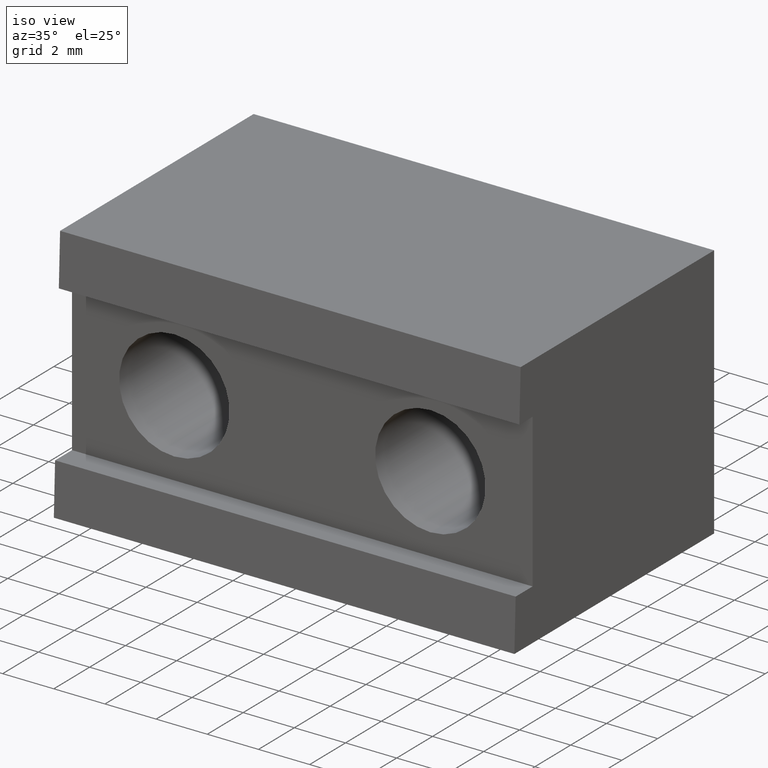
[diagram: clean part render]
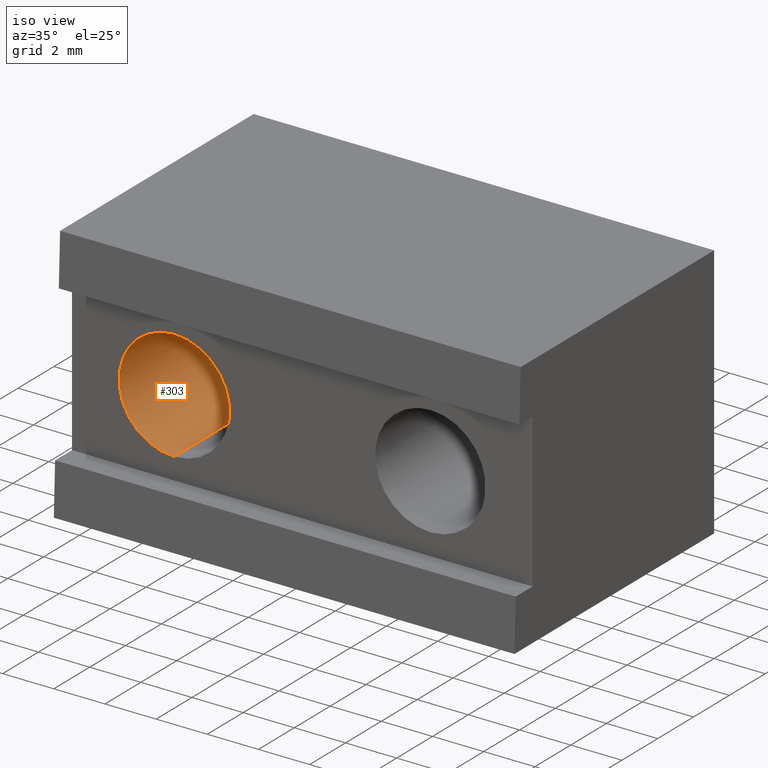
[diagram: same view with one face highlighted and labeled with its STEP entity id]
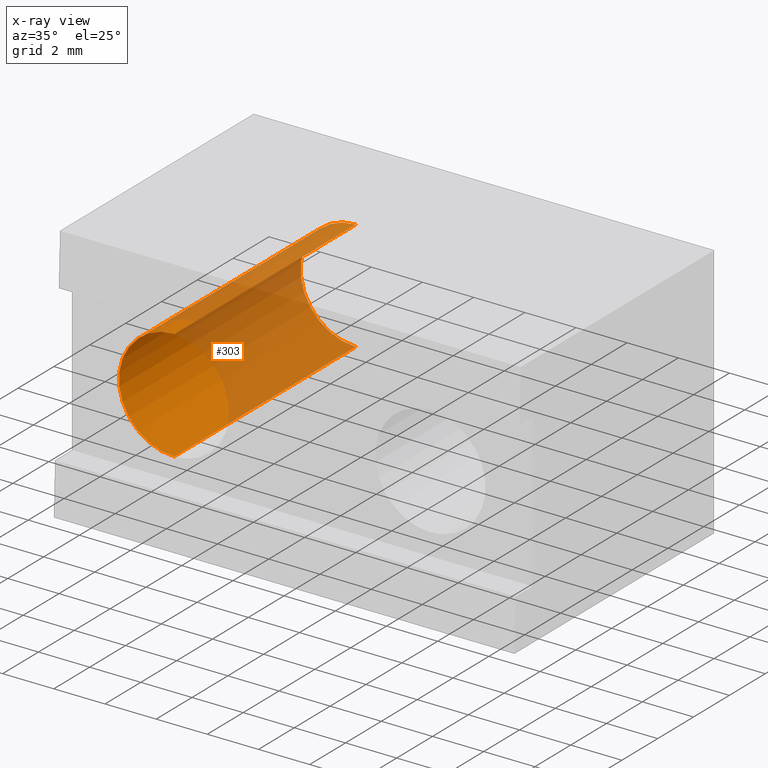
[diagram: x-ray of the same camera — body ghosted, the highlighted face saturated]
A machine part, iso view. The second image highlights one B-rep face of the part: STEP entity #303.
The next image is the same camera in x-ray: the body ghosted, the highlighted face saturated — about 61% of this face is hidden behind the body in this view.
In plain terms, the highlighted cylindrical surface (partial cylindrical patch) has radius 2.159 mm, axis along (-0, 1, -0).
Its self-contained STEP definition (entity closure, byte-faithful):
#33 = EDGE_LOOP ( 'NONE', ( #74, #105, #41, #128 ) ) ;
#41 = ORIENTED_EDGE ( 'NONE', *, *, #193, .T. ) ;
#49 = CIRCLE ( 'NONE', #140, 0.08499999999999997800 ) ;
#74 = ORIENTED_EDGE ( 'NONE', *, *, #166, .T. ) ;
#76 = LINE ( 'NONE', #381, #84 ) ;
#84 = VECTOR ( 'NONE', #382, 39.37007874015748100 ) ;
#105 = ORIENTED_EDGE ( 'NONE', *, *, #344, .T. ) ;
#128 = ORIENTED_EDGE ( 'NONE', *, *, #164, .F. ) ;
#140 = AXIS2_PLACEMENT_3D ( 'NONE', #513, #504, #505 ) ;
#151 = AXIS2_PLACEMENT_3D ( 'NONE', #395, #398, #397 ) ;
#164 = EDGE_CURVE ( 'NONE', #334, #337, #76, .T. ) ;
#165 = AXIS2_PLACEMENT_3D ( 'NONE', #433, #430, #442 ) ;
#166 = EDGE_CURVE ( 'NONE', #334, #333, #49, .T. ) ;
#193 = EDGE_CURVE ( 'NONE', #305, #337, #286, .T. ) ;
#215 = CYLINDRICAL_SURFACE ( 'NONE', #165, 0.08499999999999997800 ) ;
#224 = FACE_OUTER_BOUND ( 'NONE', #33, .T. ) ;
#229 = LINE ( 'NONE', #400, #254 ) ;
#254 = VECTOR ( 'NONE', #399, 39.37007874015748100 ) ;
#286 = CIRCLE ( 'NONE', #151, 0.08499999999999997800 ) ;
#303 = ADVANCED_FACE ( 'NONE', ( #224 ), #215, .F. ) ;
#305 = VERTEX_POINT ( 'NONE', #476 ) ;
#333 = VERTEX_POINT ( 'NONE', #418 ) ;
#334 = VERTEX_POINT ( 'NONE', #417 ) ;
#337 = VERTEX_POINT ( 'NONE', #415 ) ;
#344 = EDGE_CURVE ( 'NONE', #333, #305, #229, .T. ) ;
#381 = CARTESIAN_POINT ( 'NONE',  ( -0.1970000000000000400, -0.5609999999999999400, -0.1118503950000000100 ) ) ;
#382 = DIRECTION ( 'NONE',  ( -0.0000000000000000000, 1.000000000000000000, -0.0000000000000000000 ) ) ;
#395 = CARTESIAN_POINT ( 'NONE',  ( -0.1970000000000000400, 0.4390000000000000000, -0.1968503949999999800 ) ) ;
#397 = DIRECTION ( 'NONE',  ( 0.0000000000000000000, 0.0000000000000000000, -1.000000000000000000 ) ) ;
#398 = DIRECTION ( 'NONE',  ( -0.0000000000000000000, 1.000000000000000000, 0.0000000000000000000 ) ) ;
#399 = DIRECTION ( 'NONE',  ( -0.0000000000000000000, 1.000000000000000000, -0.0000000000000000000 ) ) ;
#400 = CARTESIAN_POINT ( 'NONE',  ( -0.1970000000000000400, -0.5609999999999999400, -0.2818503949999999800 ) ) ;
#415 = CARTESIAN_POINT ( 'NONE',  ( -0.1970000000000000400, 0.4390000000000000000, -0.1118503950000000100 ) ) ;
#417 = CARTESIAN_POINT ( 'NONE',  ( -0.1970000000000000400, 0.03999999999999998000, -0.1118503950000000100 ) ) ;
#418 = CARTESIAN_POINT ( 'NONE',  ( -0.1970000000000000400, 0.03999999999999998000, -0.2818503949999999800 ) ) ;
#430 = DIRECTION ( 'NONE',  ( -0.0000000000000000000, 1.000000000000000000, -0.0000000000000000000 ) ) ;
#433 = CARTESIAN_POINT ( 'NONE',  ( -0.1970000000000000400, -0.5609999999999999400, -0.1968503949999999800 ) ) ;
#442 = DIRECTION ( 'NONE',  ( 0.0000000000000000000, 0.0000000000000000000, 1.000000000000000000 ) ) ;
#476 = CARTESIAN_POINT ( 'NONE',  ( -0.1970000000000000400, 0.4390000000000000000, -0.2818503949999999800 ) ) ;
#504 = DIRECTION ( 'NONE',  ( -0.0000000000000000000, -1.000000000000000000, -0.0000000000000000000 ) ) ;
#505 = DIRECTION ( 'NONE',  ( 0.0000000000000000000, 0.0000000000000000000, 1.000000000000000000 ) ) ;
#513 = CARTESIAN_POINT ( 'NONE',  ( -0.1970000000000000400, 0.03999999999999998000, -0.1968503949999999800 ) ) ;